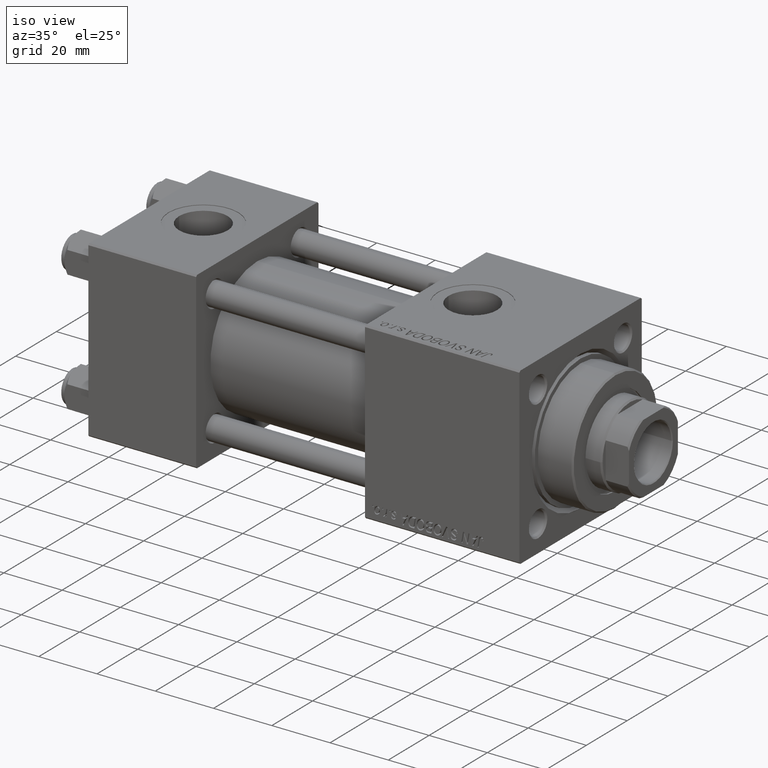
[diagram: clean part render]
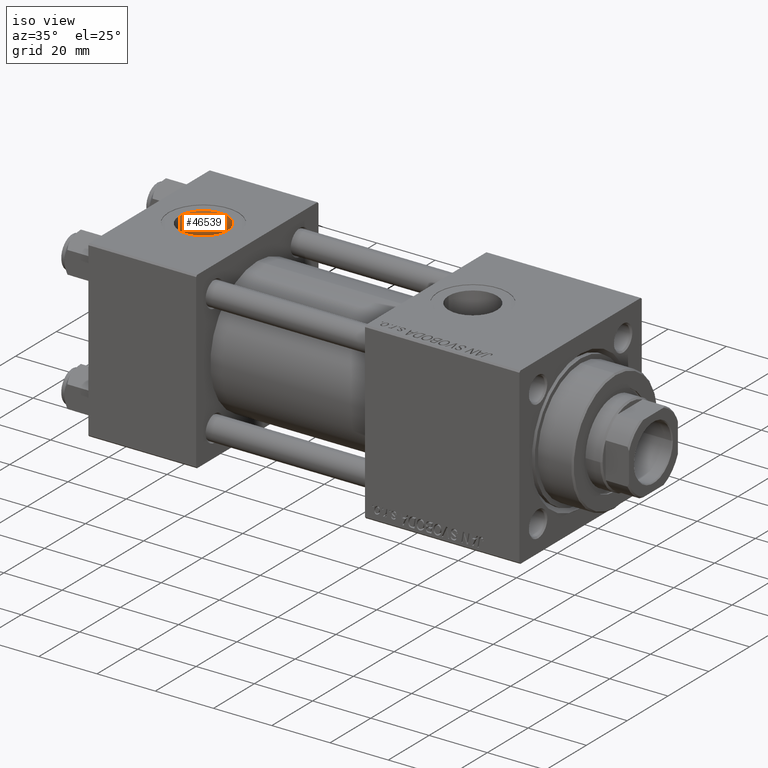
[diagram: same view with one face highlighted and labeled with its STEP entity id]
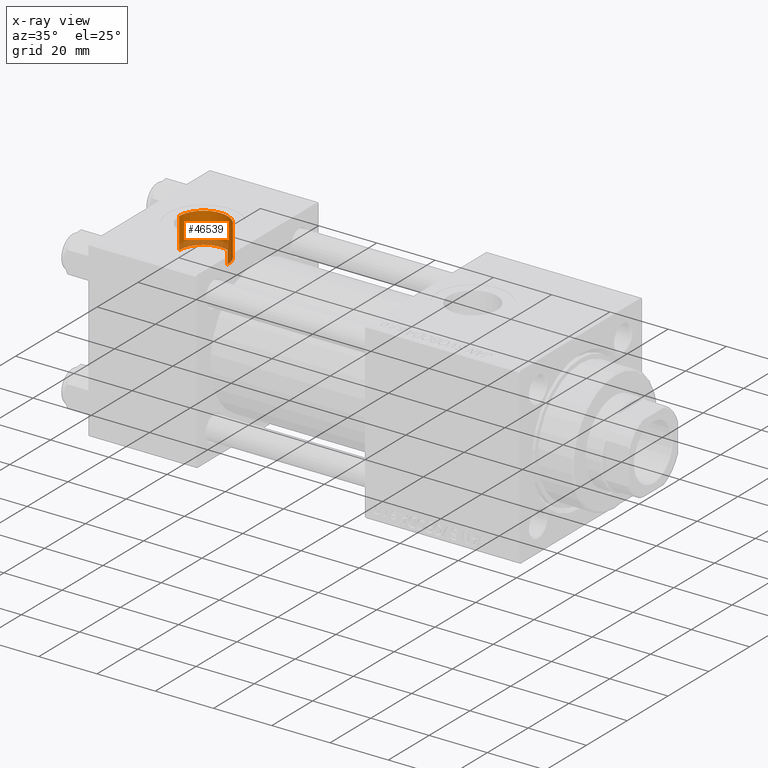
[diagram: x-ray of the same camera — body ghosted, the highlighted face saturated]
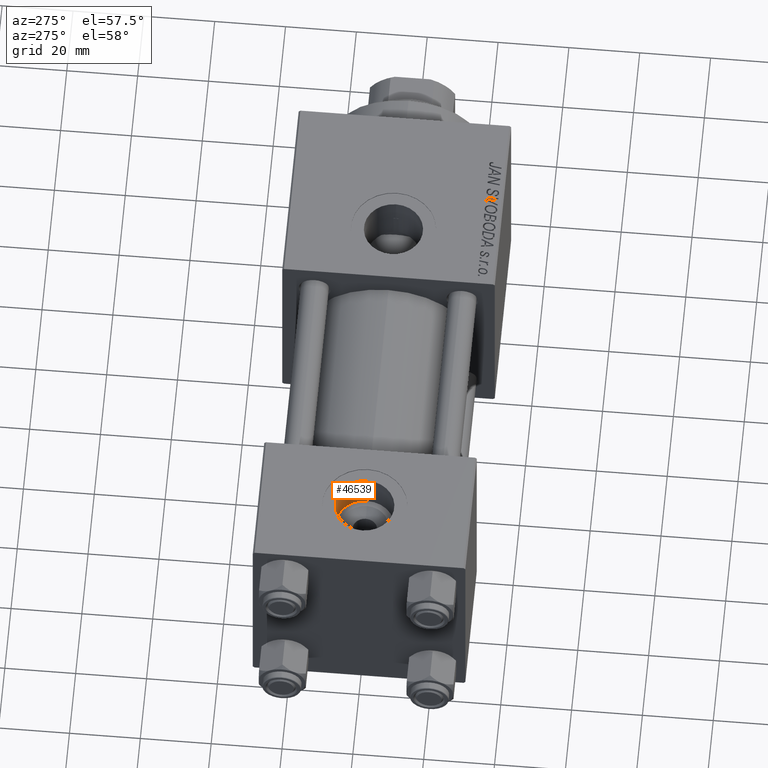
[diagram: same view with one face highlighted and labeled with its STEP entity id]
A machine part, iso view. The second image highlights one B-rep face of the part: STEP entity #46539.
The next image is the same camera in x-ray: the body ghosted, the highlighted face saturated — about 16% of this face is hidden behind the body in this view.
A second angle (auxiliary view) of the same face is appended — the face is thin or edge-on in the first view.
In plain terms, the highlighted cylindrical surface (edge-blend (fillet) strip) has radius 8.33 mm, axis along (0, 0, 1).
Its self-contained STEP definition (entity closure, byte-faithful):
#133 = VECTOR ( 'NONE', #24919, 1000.000000000000000 ) ;
#578 = DIRECTION ( 'NONE',  ( -0.000000000000000000, -0.000000000000000000, 1.000000000000000000 ) ) ;
#1028 = EDGE_CURVE ( 'NONE', #40390, #39636, #23439, .T. ) ;
#8099 = FACE_OUTER_BOUND ( 'NONE', #39000, .T. ) ;
#10131 = CARTESIAN_POINT ( 'NONE',  ( 18.50000000000000000, -3.469446951953614978E-15, 29.79999999999999716 ) ) ;
#11917 = CIRCLE ( 'NONE', #45488, 8.330000000000000071 ) ;
#12550 = CARTESIAN_POINT ( 'NONE',  ( 18.50000000000000000, -3.469446951953614978E-15, 19.19999999999999574 ) ) ;
#13321 = CARTESIAN_POINT ( 'NONE',  ( 10.16999999999999638, -2.449316168263869821E-15, 19.19999999999999574 ) ) ;
#13572 = CARTESIAN_POINT ( 'NONE',  ( 26.82999999999999829, -3.469446951953614978E-15, 19.19999999999999574 ) ) ;
#13916 = EDGE_CURVE ( 'NONE', #23328, #40390, #32080, .T. ) ;
#15330 = EDGE_CURVE ( 'NONE', #23328, #48329, #44900, .T. ) ;
#16744 = DIRECTION ( 'NONE',  ( -0.000000000000000000, -0.000000000000000000, 1.000000000000000000 ) ) ;
#20176 = ORIENTED_EDGE ( 'NONE', *, *, #46880, .T. ) ;
#21647 = ORIENTED_EDGE ( 'NONE', *, *, #13916, .F. ) ;
#22106 = DIRECTION ( 'NONE',  ( 0.000000000000000000, 0.000000000000000000, 1.000000000000000000 ) ) ;
#23328 = VERTEX_POINT ( 'NONE', #13572 ) ;
#23439 = LINE ( 'NONE', #36588, #42549 ) ;
#24919 = DIRECTION ( 'NONE',  ( -0.000000000000000000, -0.000000000000000000, 1.000000000000000000 ) ) ;
#26054 = DIRECTION ( 'NONE',  ( 1.000000000000000000, 0.000000000000000000, 0.000000000000000000 ) ) ;
#26119 = AXIS2_PLACEMENT_3D ( 'NONE', #12550, #16744, #28070 ) ;
#28070 = DIRECTION ( 'NONE',  ( 1.000000000000000000, 0.000000000000000000, 0.000000000000000000 ) ) ;
#28097 = CARTESIAN_POINT ( 'NONE',  ( 26.82999999999999829, -3.469446951953614978E-15, 19.19999999999999574 ) ) ;
#28771 = CARTESIAN_POINT ( 'NONE',  ( 10.16999999999999638, -2.449316168263869821E-15, 29.79999999999999716 ) ) ;
#31871 = CARTESIAN_POINT ( 'NONE',  ( 26.82999999999999829, -3.469446951953614978E-15, 29.79999999999999716 ) ) ;
#32080 = CIRCLE ( 'NONE', #45490, 8.330000000000000071 ) ;
#33968 = CARTESIAN_POINT ( 'NONE',  ( 18.50000000000000000, -3.469446951953614978E-15, 19.19999999999999574 ) ) ;
#34840 = DIRECTION ( 'NONE',  ( 1.000000000000000000, 0.000000000000000000, 0.000000000000000000 ) ) ;
#36588 = CARTESIAN_POINT ( 'NONE',  ( 10.16999999999999638, -2.449316168263869821E-15, 19.19999999999999574 ) ) ;
#39000 = EDGE_LOOP ( 'NONE', ( #49116, #21647, #40434, #20176 ) ) ;
#39045 = DIRECTION ( 'NONE',  ( 0.000000000000000000, 0.000000000000000000, 1.000000000000000000 ) ) ;
#39636 = VERTEX_POINT ( 'NONE', #28771 ) ;
#40390 = VERTEX_POINT ( 'NONE', #13321 ) ;
#40434 = ORIENTED_EDGE ( 'NONE', *, *, #15330, .T. ) ;
#41181 = CYLINDRICAL_SURFACE ( 'NONE', #26119, 8.330000000000000071 ) ;
#42549 = VECTOR ( 'NONE', #578, 1000.000000000000000 ) ;
#44900 = LINE ( 'NONE', #28097, #133 ) ;
#45488 = AXIS2_PLACEMENT_3D ( 'NONE', #10131, #39045, #34840 ) ;
#45490 = AXIS2_PLACEMENT_3D ( 'NONE', #33968, #22106, #26054 ) ;
#46539 = ADVANCED_FACE ( 'NONE', ( #8099 ), #41181, .F. ) ;
#46880 = EDGE_CURVE ( 'NONE', #48329, #39636, #11917, .T. ) ;
#48329 = VERTEX_POINT ( 'NONE', #31871 ) ;
#49116 = ORIENTED_EDGE ( 'NONE', *, *, #1028, .F. ) ;